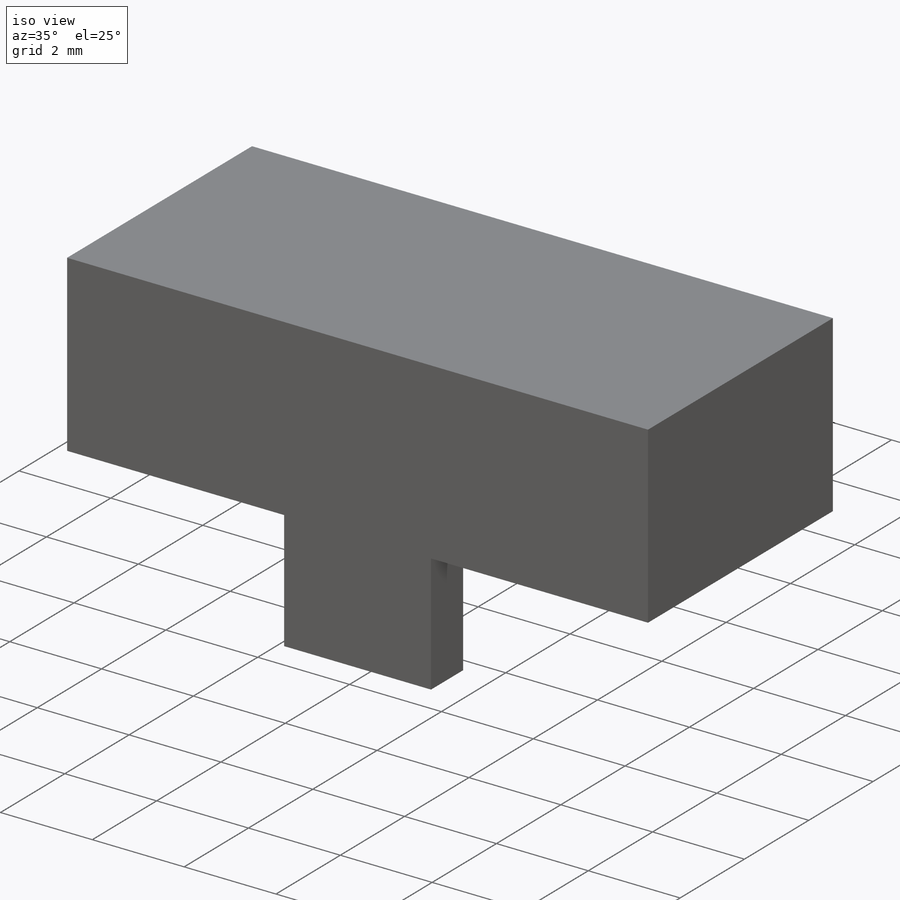
[diagram: iso view]
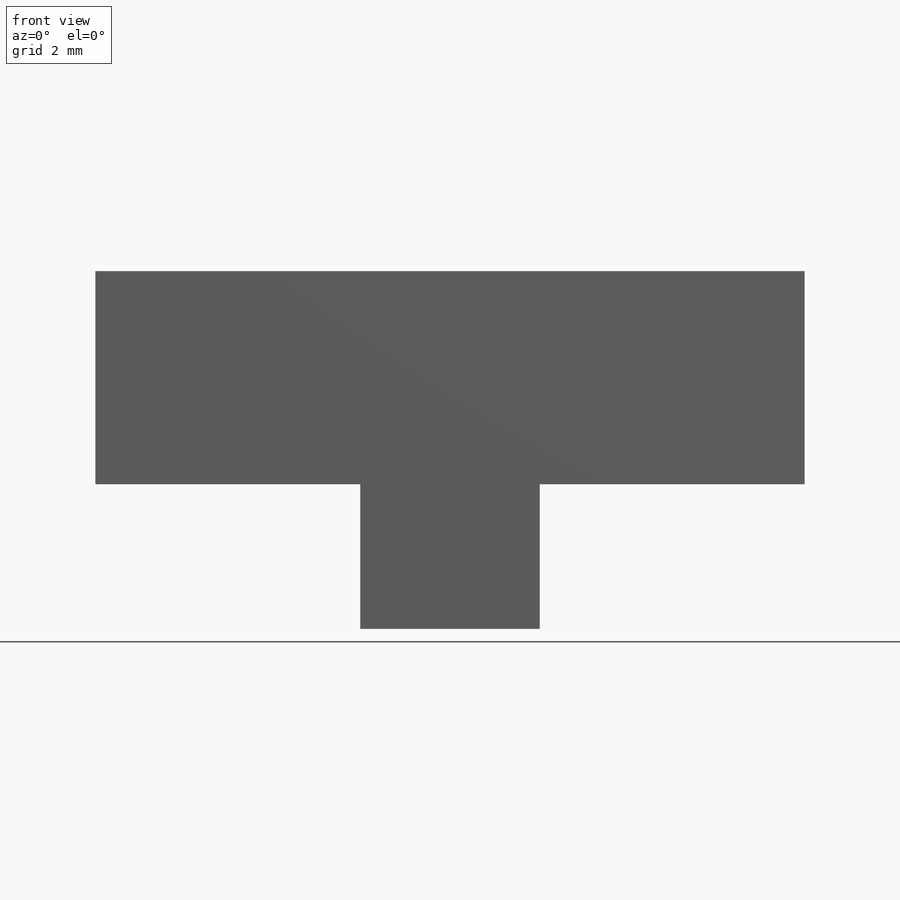
[diagram: front view]
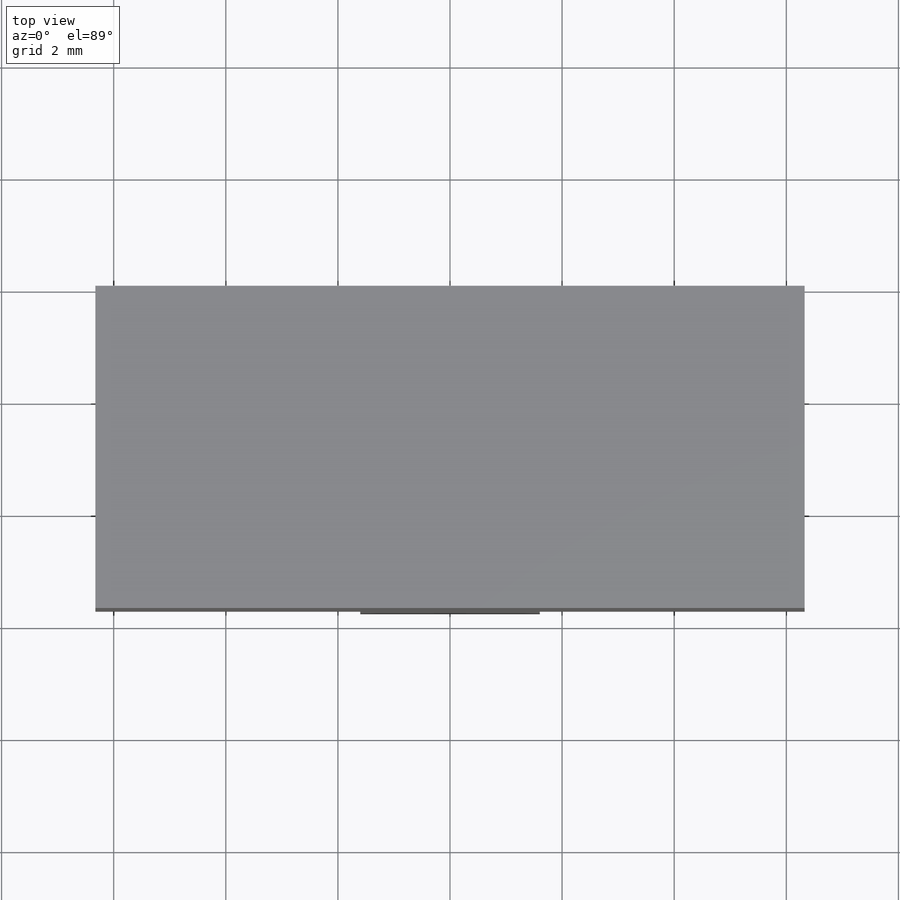
[diagram: top view]
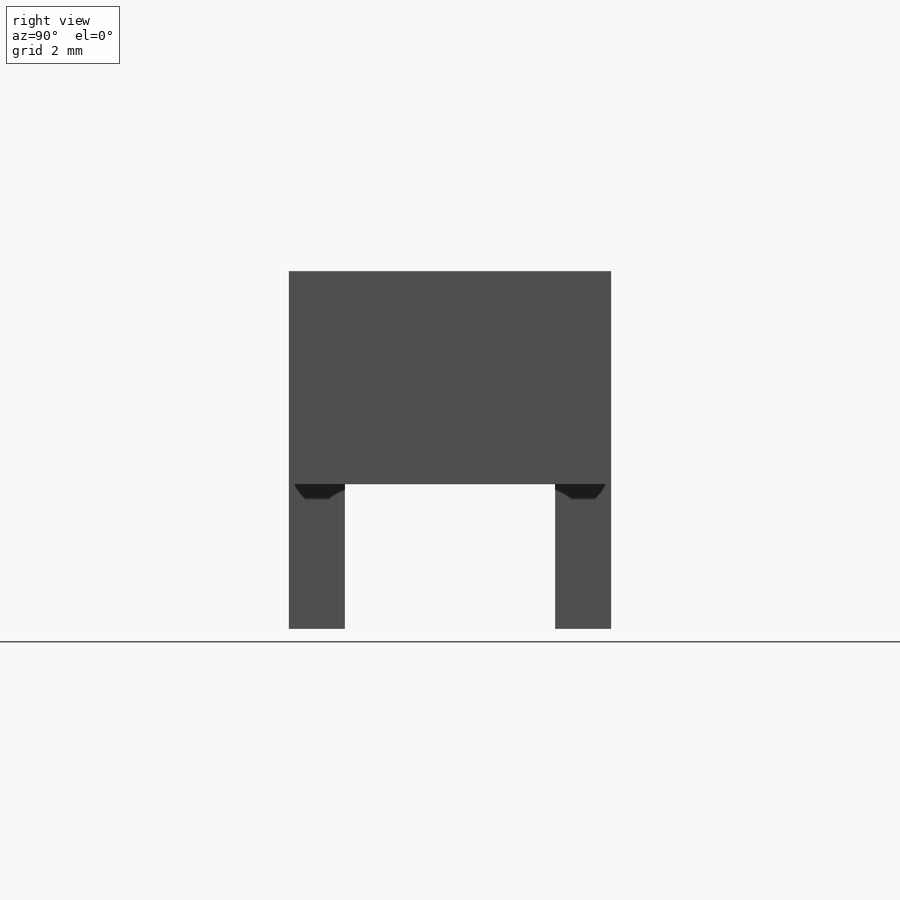
[diagram: right view]
SOLIDWORKS PART (.sldprt)
format: sldprt  version: not decoded by parser v0  size: 218,112 bytes
history: native  units: mm
features: sketch x4, extrude x3, material x1, plane x1 (+12 scaffold rows collapsed)
feature tree (21):
  scaffold x12  (default folders/planes/origin — collapsed)
  material  "Material <not specified>"
  sketch  "Sketch1"  dims[D1=3.8mm D2=12.65mm]
  extrude  "Extrude1"  Depth=5.75mm
  sketch  "Sketch2"  dims[D1=3.2mm D2=2.58mm]
  extrude  "Extrude2"  Depth=1mm
  sketch  "Sketch3"
  extrude  "Extrude3"  Depth=1mm
  plane  "Plane1"  Offset=4mm
  sketch  "Sketch4"  dims[D1=0.1mm]
decode coverage: 6 of 7 modeling features carry decoded parameters
note: suppression state not decoded; provenance and decode notes live in map.json
